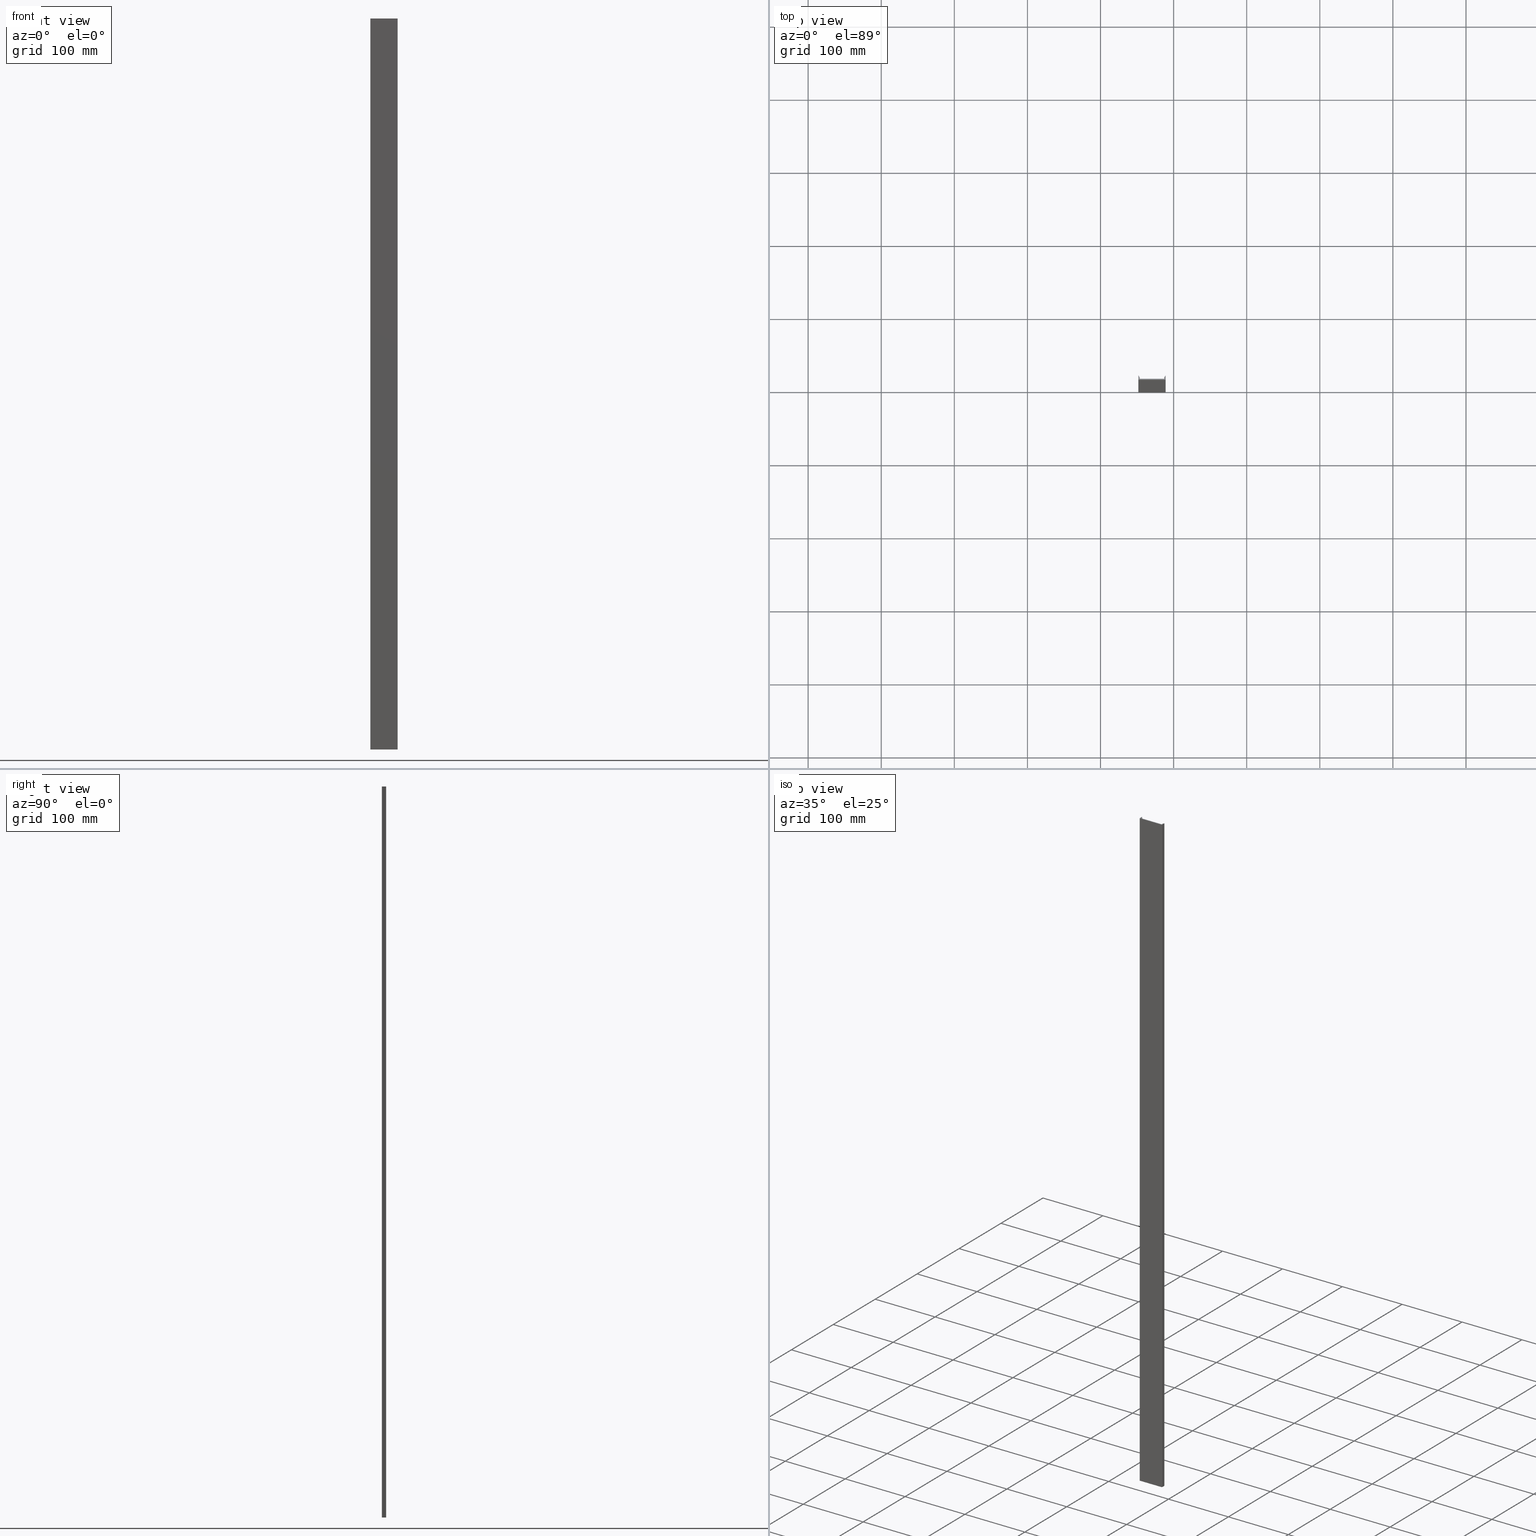
[diagram: canonical four-view strip — front | top / right | iso, engineering-drawing reading convention]
A machine part, canonical four-view strip (front | top / right | iso — engineering-drawing reading convention). The complete STEP part file that produces these views, byte-faithful:
ISO-10303-21;
HEADER;
FILE_DESCRIPTION (( 'STEP AP203' ),
    '1' );
FILE_NAME ('Da��t�c� �nite Alt �zolasyon Aparat� .STEP',
    '2018-12-19T11:37:42',
    ( '' ),
    ( '' ),
    'SwSTEP 2.0',
    'SolidWorks 2011',
    '' );
FILE_SCHEMA (( 'CONFIG_CONTROL_DESIGN' ));
ENDSEC;

DATA;
#1 = ORIENTED_EDGE ( 'NONE', *, *, #385, .T. ) ;
#2 = ORIENTED_EDGE ( 'NONE', *, *, #379, .T. ) ;
#3 = ORIENTED_EDGE ( 'NONE', *, *, #373, .F. ) ;
#4 = ORIENTED_EDGE ( 'NONE', *, *, #364, .F. ) ;
#5 = ORIENTED_EDGE ( 'NONE', *, *, #361, .F. ) ;
#6 = ORIENTED_EDGE ( 'NONE', *, *, #421, .T. ) ;
#7 = ORIENTED_EDGE ( 'NONE', *, *, #368, .F. ) ;
#8 = ORIENTED_EDGE ( 'NONE', *, *, #351, .T. ) ;
#9 = ORIENTED_EDGE ( 'NONE', *, *, #391, .T. ) ;
#10 = ORIENTED_EDGE ( 'NONE', *, *, #417, .T. ) ;
#11 = ORIENTED_EDGE ( 'NONE', *, *, #395, .T. ) ;
#12 = ORIENTED_EDGE ( 'NONE', *, *, #365, .T. ) ;
#13 = ORIENTED_EDGE ( 'NONE', *, *, #354, .F. ) ;
#14 = ORIENTED_EDGE ( 'NONE', *, *, #344, .F. ) ;
#15 = ORIENTED_EDGE ( 'NONE', *, *, #381, .F. ) ;
#16 = ORIENTED_EDGE ( 'NONE', *, *, #371, .F. ) ;
#17 = ORIENTED_EDGE ( 'NONE', *, *, #350, .F. ) ;
#18 = ORIENTED_EDGE ( 'NONE', *, *, #348, .F. ) ;
#19 = ORIENTED_EDGE ( 'NONE', *, *, #390, .T. ) ;
#20 = ORIENTED_EDGE ( 'NONE', *, *, #431, .T. ) ;
#21 = ORIENTED_EDGE ( 'NONE', *, *, #347, .F. ) ;
#22 = ORIENTED_EDGE ( 'NONE', *, *, #384, .F. ) ;
#23 = ORIENTED_EDGE ( 'NONE', *, *, #394, .T. ) ;
#24 = ORIENTED_EDGE ( 'NONE', *, *, #400, .F. ) ;
#25 = ORIENTED_EDGE ( 'NONE', *, *, #390, .F. ) ;
#26 = ORIENTED_EDGE ( 'NONE', *, *, #408, .F. ) ;
#27 = ORIENTED_EDGE ( 'NONE', *, *, #366, .F. ) ;
#28 = ORIENTED_EDGE ( 'NONE', *, *, #385, .F. ) ;
#29 = ORIENTED_EDGE ( 'NONE', *, *, #421, .F. ) ;
#30 = ORIENTED_EDGE ( 'NONE', *, *, #362, .F. ) ;
#31 = ORIENTED_EDGE ( 'NONE', *, *, #356, .F. ) ;
#32 = ORIENTED_EDGE ( 'NONE', *, *, #402, .F. ) ;
#33 = ORIENTED_EDGE ( 'NONE', *, *, #412, .F. ) ;
#34 = ORIENTED_EDGE ( 'NONE', *, *, #378, .F. ) ;
#35 = ORIENTED_EDGE ( 'NONE', *, *, #392, .F. ) ;
#36 = ORIENTED_EDGE ( 'NONE', *, *, #395, .F. ) ;
#37 = ORIENTED_EDGE ( 'NONE', *, *, #401, .T. ) ;
#38 = ORIENTED_EDGE ( 'NONE', *, *, #402, .T. ) ;
#39 = ORIENTED_EDGE ( 'NONE', *, *, #397, .F. ) ;
#40 = ORIENTED_EDGE ( 'NONE', *, *, #428, .F. ) ;
#41 = ORIENTED_EDGE ( 'NONE', *, *, #396, .T. ) ;
#42 = ORIENTED_EDGE ( 'NONE', *, *, #369, .T. ) ;
#43 = ORIENTED_EDGE ( 'NONE', *, *, #397, .T. ) ;
#44 = ORIENTED_EDGE ( 'NONE', *, *, #413, .F. ) ;
#45 = ORIENTED_EDGE ( 'NONE', *, *, #360, .T. ) ;
#46 = ORIENTED_EDGE ( 'NONE', *, *, #380, .F. ) ;
#47 = ORIENTED_EDGE ( 'NONE', *, *, #396, .F. ) ;
#48 = ORIENTED_EDGE ( 'NONE', *, *, #391, .F. ) ;
#49 = ORIENTED_EDGE ( 'NONE', *, *, #376, .F. ) ;
#50 = ORIENTED_EDGE ( 'NONE', *, *, #372, .F. ) ;
#51 = ORIENTED_EDGE ( 'NONE', *, *, #400, .T. ) ;
#52 = ORIENTED_EDGE ( 'NONE', *, *, #401, .F. ) ;
#53 = ORIENTED_EDGE ( 'NONE', *, *, #432, .F. ) ;
#54 = ORIENTED_EDGE ( 'NONE', *, *, #367, .F. ) ;
#55 = ORIENTED_EDGE ( 'NONE', *, *, #422, .T. ) ;
#56 = ORIENTED_EDGE ( 'NONE', *, *, #370, .F. ) ;
#57 = ORIENTED_EDGE ( 'NONE', *, *, #358, .F. ) ;
#58 = ORIENTED_EDGE ( 'NONE', *, *, #417, .F. ) ;
#59 = ORIENTED_EDGE ( 'NONE', *, *, #359, .T. ) ;
#60 = ORIENTED_EDGE ( 'NONE', *, *, #355, .T. ) ;
#61 = ORIENTED_EDGE ( 'NONE', *, *, #420, .F. ) ;
#62 = ORIENTED_EDGE ( 'NONE', *, *, #375, .T. ) ;
#63 = ORIENTED_EDGE ( 'NONE', *, *, #353, .F. ) ;
#64 = ORIENTED_EDGE ( 'NONE', *, *, #352, .T. ) ;
#65 = EDGE_LOOP ( 'NONE', ( #48, #30, #36, #261 ) ) ;
#66 = EDGE_LOOP ( 'NONE', ( #47, #56, #40, #57 ) ) ;
#67 = EDGE_LOOP ( 'NONE', ( #100, #19, #3, #121, #137, #43, #101, #1, #31, #11, #22, #122, #54, #134, #21, #59, #55, #7, #131, #50, #119 ) ) ;
#68 = EDGE_LOOP ( 'NONE', ( #14, #133, #18, #123 ) ) ;
#69 = EDGE_LOOP ( 'NONE', ( #79, #94, #110, #111 ) ) ;
#70 = EDGE_LOOP ( 'NONE', ( #26, #16, #44, #5 ) ) ;
#71 = EDGE_LOOP ( 'NONE', ( #52, #46, #39, #17 ) ) ;
#72 = EDGE_LOOP ( 'NONE', ( #8, #6, #64, #128, #2, #38, #45, #23, #12, #60, #51, #42, #41, #120, #9, #129, #20, #138, #37, #62, #10 ) ) ;
#73 = EDGE_LOOP ( 'NONE', ( #29, #13, #25, #35 ) ) ;
#74 = ORIENTED_EDGE ( 'NONE', *, *, #381, .T. ) ;
#75 = EDGE_LOOP ( 'NONE', ( #32, #27, #53, #34 ) ) ;
#76 = ORIENTED_EDGE ( 'NONE', *, *, #370, .T. ) ;
#77 = ORIENTED_EDGE ( 'NONE', *, *, #354, .T. ) ;
#78 = EDGE_LOOP ( 'NONE', ( #127, #76, #130, #98 ) ) ;
#79 = ORIENTED_EDGE ( 'NONE', *, *, #345, .F. ) ;
#80 = ORIENTED_EDGE ( 'NONE', *, *, #375, .F. ) ;
#81 = ORIENTED_EDGE ( 'NONE', *, *, #363, .T. ) ;
#82 = EDGE_LOOP ( 'NONE', ( #106, #114, #117, #108 ) ) ;
#83 = EDGE_LOOP ( 'NONE', ( #112, #113, #118, #104 ) ) ;
#84 = EDGE_LOOP ( 'NONE', ( #97, #102, #132, #99 ) ) ;
#85 = EDGE_LOOP ( 'NONE', ( #116, #4, #28, #15 ) ) ;
#86 = EDGE_LOOP ( 'NONE', ( #24, #49, #61, #63 ) ) ;
#87 = EDGE_LOOP ( 'NONE', ( #282, #254, #262, #277 ) ) ;
#88 = EDGE_LOOP ( 'NONE', ( #58, #124, #33, #115 ) ) ;
#89 = EDGE_LOOP ( 'NONE', ( #136, #81, #80, #103 ) ) ;
#90 = EDGE_LOOP ( 'NONE', ( #246, #292, #245, #273 ) ) ;
#91 = EDGE_LOOP ( 'NONE', ( #289, #259, #107, #105 ) ) ;
#92 = ORIENTED_EDGE ( 'NONE', *, *, #380, .T. ) ;
#93 = EDGE_LOOP ( 'NONE', ( #109, #77, #125, #126 ) ) ;
#94 = ORIENTED_EDGE ( 'NONE', *, *, #377, .T. ) ;
#95 = ORIENTED_EDGE ( 'NONE', *, *, #357, .T. ) ;
#96 = EDGE_LOOP ( 'NONE', ( #135, #74, #95, #92 ) ) ;
#97 = ORIENTED_EDGE ( 'NONE', *, *, #352, .F. ) ;
#98 = ORIENTED_EDGE ( 'NONE', *, *, #353, .T. ) ;
#99 = ORIENTED_EDGE ( 'NONE', *, *, #371, .T. ) ;
#100 = ORIENTED_EDGE ( 'NONE', *, *, #398, .F. ) ;
#101 = ORIENTED_EDGE ( 'NONE', *, *, #357, .F. ) ;
#102 = ORIENTED_EDGE ( 'NONE', *, *, #392, .T. ) ;
#103 = ORIENTED_EDGE ( 'NONE', *, *, #350, .T. ) ;
#104 = ORIENTED_EDGE ( 'NONE', *, *, #362, .T. ) ;
#105 = ORIENTED_EDGE ( 'NONE', *, *, #378, .T. ) ;
#106 = ORIENTED_EDGE ( 'NONE', *, *, #347, .T. ) ;
#107 = ORIENTED_EDGE ( 'NONE', *, *, #360, .F. ) ;
#108 = ORIENTED_EDGE ( 'NONE', *, *, #374, .T. ) ;
#109 = ORIENTED_EDGE ( 'NONE', *, *, #373, .T. ) ;
#110 = ORIENTED_EDGE ( 'NONE', *, *, #356, .T. ) ;
#111 = ORIENTED_EDGE ( 'NONE', *, *, #364, .T. ) ;
#112 = ORIENTED_EDGE ( 'NONE', *, *, #346, .F. ) ;
#113 = ORIENTED_EDGE ( 'NONE', *, *, #358, .T. ) ;
#114 = ORIENTED_EDGE ( 'NONE', *, *, #376, .T. ) ;
#115 = ORIENTED_EDGE ( 'NONE', *, *, #383, .F. ) ;
#116 = ORIENTED_EDGE ( 'NONE', *, *, #431, .F. ) ;
#117 = ORIENTED_EDGE ( 'NONE', *, *, #355, .F. ) ;
#118 = ORIENTED_EDGE ( 'NONE', *, *, #384, .T. ) ;
#119 = ORIENTED_EDGE ( 'NONE', *, *, #413, .T. ) ;
#120 = ORIENTED_EDGE ( 'NONE', *, *, #346, .T. ) ;
#121 = ORIENTED_EDGE ( 'NONE', *, *, #412, .T. ) ;
#122 = ORIENTED_EDGE ( 'NONE', *, *, #428, .T. ) ;
#123 = ORIENTED_EDGE ( 'NONE', *, *, #422, .F. ) ;
#124 = ORIENTED_EDGE ( 'NONE', *, *, #363, .F. ) ;
#125 = ORIENTED_EDGE ( 'NONE', *, *, #351, .F. ) ;
#126 = ORIENTED_EDGE ( 'NONE', *, *, #383, .T. ) ;
#127 = ORIENTED_EDGE ( 'NONE', *, *, #367, .T. ) ;
#128 = ORIENTED_EDGE ( 'NONE', *, *, #408, .T. ) ;
#129 = ORIENTED_EDGE ( 'NONE', *, *, #345, .T. ) ;
#130 = ORIENTED_EDGE ( 'NONE', *, *, #369, .F. ) ;
#131 = ORIENTED_EDGE ( 'NONE', *, *, #432, .T. ) ;
#132 = ORIENTED_EDGE ( 'NONE', *, *, #398, .T. ) ;
#133 = ORIENTED_EDGE ( 'NONE', *, *, #394, .F. ) ;
#134 = ORIENTED_EDGE ( 'NONE', *, *, #420, .T. ) ;
#135 = ORIENTED_EDGE ( 'NONE', *, *, #382, .F. ) ;
#136 = ORIENTED_EDGE ( 'NONE', *, *, #349, .T. ) ;
#137 = ORIENTED_EDGE ( 'NONE', *, *, #349, .F. ) ;
#138 = ORIENTED_EDGE ( 'NONE', *, *, #382, .T. ) ;
#139 = DIRECTION ( 'NONE',  ( 0.0000000000000000000, -0.0000000000000000000, 1.000000000000000000 ) ) ;
#140 = DIRECTION ( 'NONE',  ( 0.0000000000000000000, -0.0000000000000000000, 1.000000000000000000 ) ) ;
#141 = DIRECTION ( 'NONE',  ( 0.0000000000000000000, 0.0000000000000000000, 1.000000000000000000 ) ) ;
#142 = PLANE ( 'NONE',  #693 ) ;
#143 = CARTESIAN_POINT ( 'NONE',  ( 52.23745546312871800, 0.5000000000000000000, 1000.000000000000000 ) ) ;
#144 = FACE_OUTER_BOUND ( 'NONE', #69, .T. ) ;
#145 = DIRECTION ( 'NONE',  ( 0.0000000000000000000, -0.0000000000000000000, 1.000000000000000000 ) ) ;
#146 = CARTESIAN_POINT ( 'NONE',  ( 51.93745546312871400, 5.453748472184605200, 0.0000000000000000000 ) ) ;
#147 = DIRECTION ( 'NONE',  ( 1.000000000000000000, 0.0000000000000000000, 0.0000000000000000000 ) ) ;
#148 = DIRECTION ( 'NONE',  ( 0.0000000000000000000, 1.000000000000000000, 0.0000000000000000000 ) ) ;
#149 = DIRECTION ( 'NONE',  ( 1.000000000000000000, 0.0000000000000000000, 0.0000000000000000000 ) ) ;
#150 = DIRECTION ( 'NONE',  ( 1.239088197126290600E-016, -1.000000000000000000, 0.0000000000000000000 ) ) ;
#151 = CARTESIAN_POINT ( 'NONE',  ( 88.63745546312873100, 0.5000000000000000000, 0.0000000000000000000 ) ) ;
#152 = DIRECTION ( 'NONE',  ( -1.000000000000000000, 0.0000000000000000000, 0.0000000000000000000 ) ) ;
#153 = DIRECTION ( 'NONE',  ( 1.000000000000000000, 1.239088197126290600E-016, 0.0000000000000000000 ) ) ;
#154 = DIRECTION ( 'NONE',  ( -0.8448190755542287500, -0.5350520811843446600, 0.0000000000000000000 ) ) ;
#155 = CYLINDRICAL_SURFACE ( 'NONE', #697, 0.5000000000000004400 ) ;
#156 = DIRECTION ( 'NONE',  ( 0.0000000000000000000, 0.0000000000000000000, 1.000000000000000000 ) ) ;
#157 = DIRECTION ( 'NONE',  ( 1.000000000000000000, 0.0000000000000000000, 0.0000000000000000000 ) ) ;
#158 = FACE_OUTER_BOUND ( 'NONE', #65, .T. ) ;
#159 = CYLINDRICAL_SURFACE ( 'NONE', #711, 0.1999999999999987900 ) ;
#160 = CARTESIAN_POINT ( 'NONE',  ( 53.43745546312872800, 1.700000000000006400, 1000.000000000000000 ) ) ;
#161 = CARTESIAN_POINT ( 'NONE',  ( 53.13745546312872400, 2.589929587939146800, 1000.000000000000000 ) ) ;
#162 = DIRECTION ( 'NONE',  ( -0.0000000000000000000, 0.0000000000000000000, -1.000000000000000000 ) ) ;
#163 = DIRECTION ( 'NONE',  ( 1.000000000000000000, -8.673617379884087500E-015, 0.0000000000000000000 ) ) ;
#164 = DIRECTION ( 'NONE',  ( 1.000000000000000000, 0.0000000000000000000, 0.0000000000000000000 ) ) ;
#165 = FACE_OUTER_BOUND ( 'NONE', #83, .T. ) ;
#166 = FACE_OUTER_BOUND ( 'NONE', #93, .T. ) ;
#167 = DIRECTION ( 'NONE',  ( 0.5350520811843445500, -0.8448190755542286400, 0.0000000000000000000 ) ) ;
#168 = PLANE ( 'NONE',  #694 ) ;
#169 = CARTESIAN_POINT ( 'NONE',  ( 87.93745546312872800, 1.200000000000010800, 1000.000000000000000 ) ) ;
#170 = PLANE ( 'NONE',  #688 ) ;
#171 = DIRECTION ( 'NONE',  ( -0.0000000000000000000, 0.0000000000000000000, -1.000000000000000000 ) ) ;
#172 = PLANE ( 'NONE',  #701 ) ;
#173 = FACE_OUTER_BOUND ( 'NONE', #84, .T. ) ;
#174 = CARTESIAN_POINT ( 'NONE',  ( 87.73745546312872500, 2.589929587939151300, 0.0000000000000000000 ) ) ;
#175 = CARTESIAN_POINT ( 'NONE',  ( 52.93745546312872100, 2.700000000000010400, 1000.000000000000000 ) ) ;
#176 = CARTESIAN_POINT ( 'NONE',  ( 51.73745546312871800, 0.0000000000000000000, 1000.000000000000000 ) ) ;
#177 = DIRECTION ( 'NONE',  ( 1.000000000000000000, 0.0000000000000000000, 0.0000000000000000000 ) ) ;
#178 = DIRECTION ( 'NONE',  ( 0.0000000000000000000, 0.0000000000000000000, -1.000000000000000000 ) ) ;
#179 = CARTESIAN_POINT ( 'NONE',  ( 51.93745546312871400, 5.453748472184605200, 1000.000000000000000 ) ) ;
#180 = CARTESIAN_POINT ( 'NONE',  ( 51.73745546312871800, 0.0000000000000000000, 1000.000000000000000 ) ) ;
#181 = DIRECTION ( 'NONE',  ( 1.000000000000000000, 0.0000000000000000000, 0.0000000000000000000 ) ) ;
#182 = DIRECTION ( 'NONE',  ( 1.000000000000000000, 7.155734338404124800E-014, 0.0000000000000000000 ) ) ;
#183 = DIRECTION ( 'NONE',  ( -0.0000000000000000000, 0.0000000000000000000, -1.000000000000000000 ) ) ;
#184 = FACE_OUTER_BOUND ( 'NONE', #85, .T. ) ;
#185 = CARTESIAN_POINT ( 'NONE',  ( 88.93745546312872800, 5.453748472184594600, 1000.000000000000000 ) ) ;
#186 = DIRECTION ( 'NONE',  ( -1.000000000000000000, 0.0000000000000000000, 0.0000000000000000000 ) ) ;
#187 = CARTESIAN_POINT ( 'NONE',  ( 87.51342969447645700, 3.205286732207314900, 0.0000000000000000000 ) ) ;
#188 = CYLINDRICAL_SURFACE ( 'NONE', #707, 0.2000000000000057300 ) ;
#189 = FACE_OUTER_BOUND ( 'NONE', #75, .T. ) ;
#190 = DIRECTION ( 'NONE',  ( 0.0000000000000000000, 0.0000000000000000000, -1.000000000000000000 ) ) ;
#191 = DIRECTION ( 'NONE',  ( 0.0000000000000000000, -0.0000000000000000000, 1.000000000000000000 ) ) ;
#192 = DIRECTION ( 'NONE',  ( 0.0000000000000000000, 0.0000000000000000000, 1.000000000000000000 ) ) ;
#193 = DIRECTION ( 'NONE',  ( 1.000000000000000000, 0.0000000000000000000, 0.0000000000000000000 ) ) ;
#194 = CC_DESIGN_SECURITY_CLASSIFICATION ( #754, ( #755 ) ) ;
#195 = MANIFOLD_SOLID_BREP ( 'Radyus2', #644 ) ;
#196 = PRODUCT_DEFINITION_SHAPE ( 'NONE', 'NONE',  #425 ) ;
#197 = UNCERTAINTY_MEASURE_WITH_UNIT (LENGTH_MEASURE( 1.000000000000000100E-005 ), #607, 'distance_accuracy_value', 'NONE');
#198 = DESIGN_CONTEXT ( 'detailed design', #556, 'design' ) ;
#199 = LINE ( 'NONE', #237, #668 ) ;
#200 = DIRECTION ( 'NONE',  ( 0.0000000000000000000, 0.0000000000000000000, -1.000000000000000000 ) ) ;
#201 = CARTESIAN_POINT ( 'NONE',  ( 87.43745546312872800, 1.200000000000010800, 0.0000000000000000000 ) ) ;
#202 = LINE ( 'NONE', #218, #639 ) ;
#203 = DIRECTION ( 'NONE',  ( -0.0000000000000000000, -0.0000000000000000000, 1.000000000000000000 ) ) ;
#204 = LINE ( 'NONE', #205, #633 ) ;
#205 = CARTESIAN_POINT ( 'NONE',  ( 51.73745546312871800, 0.0000000000000000000, 1000.000000000000000 ) ) ;
#206 = LINE ( 'NONE', #221, #666 ) ;
#207 = LINE ( 'NONE', #216, #638 ) ;
#208 = LINE ( 'NONE', #241, #659 ) ;
#209 = DIRECTION ( 'NONE',  ( 0.8448190755542285300, 0.5350520811843447700, -0.0000000000000000000 ) ) ;
#210 = CARTESIAN_POINT ( 'NONE',  ( 51.73745546312871800, 0.5000000000000000000, 1000.000000000000000 ) ) ;
#211 = DIRECTION ( 'NONE',  ( 0.0000000000000000000, 0.0000000000000000000, -1.000000000000000000 ) ) ;
#212 = CARTESIAN_POINT ( 'NONE',  ( 52.93745546312872100, 2.700000000000010400, 0.0000000000000000000 ) ) ;
#213 = CARTESIAN_POINT ( 'NONE',  ( 87.51342969447645700, 3.205286732207314900, 0.0000000000000000000 ) ) ;
#214 = DIRECTION ( 'NONE',  ( -0.0000000000000000000, 0.0000000000000000000, -1.000000000000000000 ) ) ;
#215 = DIRECTION ( 'NONE',  ( 1.000000000000000000, 4.336808689941893900E-015, 0.0000000000000000000 ) ) ;
#216 = CARTESIAN_POINT ( 'NONE',  ( 51.73745546312871800, 6.143333333333338000, 0.0000000000000000000 ) ) ;
#217 = DIRECTION ( 'NONE',  ( -0.5350520811843445500, 0.8448190755542286400, -0.0000000000000000000 ) ) ;
#218 = CARTESIAN_POINT ( 'NONE',  ( 89.13745546312873100, 6.143333333333338000, 1000.000000000000000 ) ) ;
#219 = DIRECTION ( 'NONE',  ( -0.0000000000000000000, -0.0000000000000000000, 1.000000000000000000 ) ) ;
#220 = DIRECTION ( 'NONE',  ( -1.000000000000000000, -1.239088197126290600E-016, 0.0000000000000000000 ) ) ;
#221 = CARTESIAN_POINT ( 'NONE',  ( 87.23745546312874000, 3.143333333333339300, 1000.000000000000000 ) ) ;
#222 = LINE ( 'NONE', #212, #675 ) ;
#223 = LINE ( 'NONE', #239, #656 ) ;
#224 = LINE ( 'NONE', #235, #665 ) ;
#225 = CARTESIAN_POINT ( 'NONE',  ( 87.34446587936560000, 3.312297148444185400, 1000.000000000000000 ) ) ;
#226 = DIRECTION ( 'NONE',  ( 0.0000000000000000000, 0.0000000000000000000, -1.000000000000000000 ) ) ;
#227 = CARTESIAN_POINT ( 'NONE',  ( 87.93745546312872800, 2.589929587939151300, 0.0000000000000000000 ) ) ;
#228 = DIRECTION ( 'NONE',  ( -0.0000000000000000000, 1.000000000000000000, -0.0000000000000000000 ) ) ;
#229 = DIRECTION ( 'NONE',  ( 1.000000000000000000, 0.0000000000000000000, 0.0000000000000000000 ) ) ;
#230 = DIRECTION ( 'NONE',  ( -0.0000000000000000000, -1.000000000000000000, -0.0000000000000000000 ) ) ;
#231 = DIRECTION ( 'NONE',  ( -0.0000000000000000000, 1.000000000000000000, -0.0000000000000000000 ) ) ;
#232 = LINE ( 'NONE', #227, #681 ) ;
#233 = DIRECTION ( 'NONE',  ( 0.8448190755542285300, -0.5350520811843447700, 0.0000000000000000000 ) ) ;
#234 = DIRECTION ( 'NONE',  ( 0.8448190755542285300, -0.5350520811843447700, 0.0000000000000000000 ) ) ;
#235 = CARTESIAN_POINT ( 'NONE',  ( 87.23745546312874000, 3.143333333333339300, 0.0000000000000000000 ) ) ;
#236 = LINE ( 'NONE', #201, #648 ) ;
#237 = CARTESIAN_POINT ( 'NONE',  ( 51.73745546312871800, 0.0000000000000000000, 1000.000000000000000 ) ) ;
#238 = LINE ( 'NONE', #242, #662 ) ;
#239 = CARTESIAN_POINT ( 'NONE',  ( 52.93745546312872100, 2.700000000000010400, 1000.000000000000000 ) ) ;
#240 = LINE ( 'NONE', #210, #657 ) ;
#241 = CARTESIAN_POINT ( 'NONE',  ( 53.53044504689184900, 3.312297148444185400, 1000.000000000000000 ) ) ;
#242 = CARTESIAN_POINT ( 'NONE',  ( 53.63745546312871700, 3.143333333333339300, 0.0000000000000000000 ) ) ;
#243 = VERTEX_POINT ( 'NONE', #286 ) ;
#244 = VERTEX_POINT ( 'NONE', #285 ) ;
#245 = ORIENTED_EDGE ( 'NONE', *, *, #359, .F. ) ;
#246 = ORIENTED_EDGE ( 'NONE', *, *, #365, .F. ) ;
#247 = CARTESIAN_POINT ( 'NONE',  ( 89.13745546312873100, 0.5000000000000000000, 1000.000000000000000 ) ) ;
#248 = VERTEX_POINT ( 'NONE', #275 ) ;
#249 = VERTEX_POINT ( 'NONE', #287 ) ;
#250 = VERTEX_POINT ( 'NONE', #247 ) ;
#251 = VERTEX_POINT ( 'NONE', #296 ) ;
#252 = VERTEX_POINT ( 'NONE', #304 ) ;
#253 = VERTEX_POINT ( 'NONE', #295 ) ;
#254 = ORIENTED_EDGE ( 'NONE', *, *, #361, .T. ) ;
#255 = VERTEX_POINT ( 'NONE', #297 ) ;
#256 = VERTEX_POINT ( 'NONE', #306 ) ;
#257 = VERTEX_POINT ( 'NONE', #333 ) ;
#258 = VERTEX_POINT ( 'NONE', #310 ) ;
#259 = ORIENTED_EDGE ( 'NONE', *, *, #348, .T. ) ;
#260 = VERTEX_POINT ( 'NONE', #331 ) ;
#261 = ORIENTED_EDGE ( 'NONE', *, *, #377, .F. ) ;
#262 = ORIENTED_EDGE ( 'NONE', *, *, #372, .T. ) ;
#263 = VERTEX_POINT ( 'NONE', #305 ) ;
#264 = VERTEX_POINT ( 'NONE', #322 ) ;
#265 = VERTEX_POINT ( 'NONE', #318 ) ;
#266 = VERTEX_POINT ( 'NONE', #335 ) ;
#267 = VERTEX_POINT ( 'NONE', #337 ) ;
#268 = VERTEX_POINT ( 'NONE', #334 ) ;
#269 = VERTEX_POINT ( 'NONE', #325 ) ;
#270 = VERTEX_POINT ( 'NONE', #343 ) ;
#271 = VERTEX_POINT ( 'NONE', #307 ) ;
#272 = VERTEX_POINT ( 'NONE', #319 ) ;
#273 = ORIENTED_EDGE ( 'NONE', *, *, #374, .F. ) ;
#274 = VERTEX_POINT ( 'NONE', #312 ) ;
#275 = CARTESIAN_POINT ( 'NONE',  ( 52.23745546312871800, 0.0000000000000000000, 1000.000000000000000 ) ) ;
#276 = VERTEX_POINT ( 'NONE', #308 ) ;
#277 = ORIENTED_EDGE ( 'NONE', *, *, #366, .T. ) ;
#278 = VERTEX_POINT ( 'NONE', #309 ) ;
#279 = VERTEX_POINT ( 'NONE', #332 ) ;
#280 = VERTEX_POINT ( 'NONE', #311 ) ;
#281 = VERTEX_POINT ( 'NONE', #340 ) ;
#282 = ORIENTED_EDGE ( 'NONE', *, *, #379, .F. ) ;
#283 = VERTEX_POINT ( 'NONE', #320 ) ;
#284 = VERTEX_POINT ( 'NONE', #341 ) ;
#285 = CARTESIAN_POINT ( 'NONE',  ( 52.93745546312872100, 1.700000000000006400, 0.0000000000000000000 ) ) ;
#286 = CARTESIAN_POINT ( 'NONE',  ( 52.23745546312871800, 0.0000000000000000000, 0.0000000000000000000 ) ) ;
#287 = CARTESIAN_POINT ( 'NONE',  ( 51.73745546312871800, 0.5000000000000000000, 0.0000000000000000000 ) ) ;
#288 = VERTEX_POINT ( 'NONE', #313 ) ;
#289 = ORIENTED_EDGE ( 'NONE', *, *, #368, .T. ) ;
#290 = VERTEX_POINT ( 'NONE', #324 ) ;
#291 = VERTEX_POINT ( 'NONE', #326 ) ;
#292 = ORIENTED_EDGE ( 'NONE', *, *, #344, .T. ) ;
#293 = VERTEX_POINT ( 'NONE', #327 ) ;
#294 = VERTEX_POINT ( 'NONE', #329 ) ;
#295 = CARTESIAN_POINT ( 'NONE',  ( 52.93745546312872100, 2.589929587939146800, 0.0000000000000000000 ) ) ;
#296 = CARTESIAN_POINT ( 'NONE',  ( 53.46849164801786700, 3.036322917096468700, 0.0000000000000000000 ) ) ;
#297 = CARTESIAN_POINT ( 'NONE',  ( 88.76849164801788600, 5.560758888421465200, 1000.000000000000000 ) ) ;
#298 = VERTEX_POINT ( 'NONE', #342 ) ;
#299 = VERTEX_POINT ( 'NONE', #336 ) ;
#300 = VERTEX_POINT ( 'NONE', #315 ) ;
#301 = VERTEX_POINT ( 'NONE', #323 ) ;
#302 = VERTEX_POINT ( 'NONE', #328 ) ;
#303 = VERTEX_POINT ( 'NONE', #314 ) ;
#304 = CARTESIAN_POINT ( 'NONE',  ( 53.43745546312872800, 1.200000000000006400, 1000.000000000000000 ) ) ;
#305 = CARTESIAN_POINT ( 'NONE',  ( 89.13745546312873100, 5.453748472184594600, 1000.000000000000000 ) ) ;
#306 = CARTESIAN_POINT ( 'NONE',  ( 51.73745546312871800, 5.453748472184605200, 0.0000000000000000000 ) ) ;
#307 = CARTESIAN_POINT ( 'NONE',  ( 53.43745546312872800, 1.200000000000006400, 0.0000000000000000000 ) ) ;
#308 = CARTESIAN_POINT ( 'NONE',  ( 87.40641927823958200, 3.036322917096468700, 1000.000000000000000 ) ) ;
#309 = CARTESIAN_POINT ( 'NONE',  ( 51.73745546312871800, 0.5000000000000000000, 1000.000000000000000 ) ) ;
#310 = CARTESIAN_POINT ( 'NONE',  ( 89.13745546312873100, 5.453748472184594600, 0.0000000000000000000 ) ) ;
#311 = CARTESIAN_POINT ( 'NONE',  ( 87.31342969447644000, 3.205286732207314900, 1000.000000000000000 ) ) ;
#312 = CARTESIAN_POINT ( 'NONE',  ( 52.10641927823956400, 5.560758888421474900, 0.0000000000000000000 ) ) ;
#313 = CARTESIAN_POINT ( 'NONE',  ( 89.13745546312873100, 0.5000000000000000000, 0.0000000000000000000 ) ) ;
#314 = CARTESIAN_POINT ( 'NONE',  ( 88.76849164801788600, 5.560758888421465200, 0.0000000000000000000 ) ) ;
#315 = CARTESIAN_POINT ( 'NONE',  ( 87.43745546312872800, 1.200000000000010800, 1000.000000000000000 ) ) ;
#316 = LINE ( 'NONE', #225, #678 ) ;
#317 = CARTESIAN_POINT ( 'NONE',  ( 87.93745546312872800, 1.200000000000010800, 1000.000000000000000 ) ) ;
#318 = CARTESIAN_POINT ( 'NONE',  ( 87.84446587936558600, 2.758893403049997000, 0.0000000000000000000 ) ) ;
#319 = CARTESIAN_POINT ( 'NONE',  ( 52.93745546312872100, 2.589929587939146800, 1000.000000000000000 ) ) ;
#320 = CARTESIAN_POINT ( 'NONE',  ( 87.34446587936560000, 3.312297148444186300, 0.0000000000000000000 ) ) ;
#321 = LINE ( 'NONE', #330, #637 ) ;
#322 = CARTESIAN_POINT ( 'NONE',  ( 87.40641927823958200, 3.036322917096468700, 0.0000000000000000000 ) ) ;
#323 = CARTESIAN_POINT ( 'NONE',  ( 87.93745546312872800, 1.700000000000010800, 1000.000000000000000 ) ) ;
#324 = CARTESIAN_POINT ( 'NONE',  ( 87.84446587936558600, 2.758893403049997000, 1000.000000000000000 ) ) ;
#325 = CARTESIAN_POINT ( 'NONE',  ( 53.03044504689185600, 2.758893403049993000, 1000.000000000000000 ) ) ;
#326 = CARTESIAN_POINT ( 'NONE',  ( 88.63745546312873100, 0.0000000000000000000, 1000.000000000000000 ) ) ;
#327 = CARTESIAN_POINT ( 'NONE',  ( 53.53044504689184900, 3.312297148444186300, 0.0000000000000000000 ) ) ;
#328 = CARTESIAN_POINT ( 'NONE',  ( 87.34446587936560000, 3.312297148444186300, 1000.000000000000000 ) ) ;
#329 = CARTESIAN_POINT ( 'NONE',  ( 53.46849164801786700, 3.036322917096468700, 1000.000000000000000 ) ) ;
#330 = CARTESIAN_POINT ( 'NONE',  ( 87.31342969447644000, 3.205286732207314900, 1000.000000000000000 ) ) ;
#331 = CARTESIAN_POINT ( 'NONE',  ( 87.31342969447644000, 3.205286732207314900, 0.0000000000000000000 ) ) ;
#332 = CARTESIAN_POINT ( 'NONE',  ( 52.10641927823956400, 5.560758888421474900, 1000.000000000000000 ) ) ;
#333 = CARTESIAN_POINT ( 'NONE',  ( 88.63745546312873100, 0.0000000000000000000, 0.0000000000000000000 ) ) ;
#334 = CARTESIAN_POINT ( 'NONE',  ( 53.03044504689185600, 2.758893403049993000, 0.0000000000000000000 ) ) ;
#335 = CARTESIAN_POINT ( 'NONE',  ( 51.73745546312871800, 5.453748472184605200, 1000.000000000000000 ) ) ;
#336 = CARTESIAN_POINT ( 'NONE',  ( 87.93745546312872800, 2.589929587939151300, 0.0000000000000000000 ) ) ;
#337 = CARTESIAN_POINT ( 'NONE',  ( 87.93745546312872800, 1.700000000000010800, 0.0000000000000000000 ) ) ;
#338 = DIRECTION ( 'NONE',  ( 0.0000000000000000000, 0.0000000000000000000, -1.000000000000000000 ) ) ;
#339 = LINE ( 'NONE', #317, #660 ) ;
#340 = CARTESIAN_POINT ( 'NONE',  ( 87.43745546312872800, 1.200000000000010800, 0.0000000000000000000 ) ) ;
#341 = CARTESIAN_POINT ( 'NONE',  ( 52.93745546312872100, 1.700000000000006400, 1000.000000000000000 ) ) ;
#342 = CARTESIAN_POINT ( 'NONE',  ( 87.93745546312872800, 2.589929587939151300, 1000.000000000000000 ) ) ;
#343 = CARTESIAN_POINT ( 'NONE',  ( 53.53044504689184900, 3.312297148444186300, 1000.000000000000000 ) ) ;
#344 = EDGE_CURVE ( 'NONE', #280, #260, #321, .T. ) ;
#345 = EDGE_CURVE ( 'NONE', #284, #272, #223, .T. ) ;
#346 = EDGE_CURVE ( 'NONE', #300, #252, #339, .T. ) ;
#347 = EDGE_CURVE ( 'NONE', #264, #265, #224, .T. ) ;
#348 = EDGE_CURVE ( 'NONE', #283, #302, #316, .T. ) ;
#349 = EDGE_CURVE ( 'NONE', #293, #274, #207, .T. ) ;
#350 = EDGE_CURVE ( 'NONE', #270, #293, #208, .T. ) ;
#351 = EDGE_CURVE ( 'NONE', #266, #278, #204, .T. ) ;
#352 = EDGE_CURVE ( 'NONE', #248, #291, #199, .T. ) ;
#353 = EDGE_CURVE ( 'NONE', #298, #299, #232, .T. ) ;
#354 = EDGE_CURVE ( 'NONE', #249, #278, #240, .T. ) ;
#355 = EDGE_CURVE ( 'NONE', #276, #290, #206, .T. ) ;
#356 = EDGE_CURVE ( 'NONE', #244, #253, #222, .T. ) ;
#357 = EDGE_CURVE ( 'NONE', #268, #251, #238, .T. ) ;
#358 = EDGE_CURVE ( 'NONE', #300, #281, #236, .T. ) ;
#359 = EDGE_CURVE ( 'NONE', #264, #260, #650, .T. ) ;
#360 = EDGE_CURVE ( 'NONE', #255, #302, #202, .T. ) ;
#361 = EDGE_CURVE ( 'NONE', #250, #288, #540, .T. ) ;
#362 = EDGE_CURVE ( 'NONE', #271, #252, #537, .T. ) ;
#363 = EDGE_CURVE ( 'NONE', #274, #279, #548, .T. ) ;
#364 = EDGE_CURVE ( 'NONE', #253, #272, #536, .T. ) ;
#365 = EDGE_CURVE ( 'NONE', #280, #276, #661, .T. ) ;
#366 = EDGE_CURVE ( 'NONE', #258, #263, #553, .T. ) ;
#367 = EDGE_CURVE ( 'NONE', #299, #267, #538, .T. ) ;
#368 = EDGE_CURVE ( 'NONE', #303, #283, #551, .T. ) ;
#369 = EDGE_CURVE ( 'NONE', #298, #301, #459, .T. ) ;
#370 = EDGE_CURVE ( 'NONE', #267, #301, #458, .T. ) ;
#371 = EDGE_CURVE ( 'NONE', #257, #291, #444, .T. ) ;
#372 = EDGE_CURVE ( 'NONE', #288, #258, #534, .T. ) ;
#373 = EDGE_CURVE ( 'NONE', #256, #249, #472, .T. ) ;
#374 = EDGE_CURVE ( 'NONE', #276, #264, #479, .T. ) ;
#375 = EDGE_CURVE ( 'NONE', #270, #279, #453, .T. ) ;
#376 = EDGE_CURVE ( 'NONE', #265, #290, #483, .T. ) ;
#377 = EDGE_CURVE ( 'NONE', #284, #244, #455, .T. ) ;
#378 = EDGE_CURVE ( 'NONE', #255, #303, #462, .T. ) ;
#379 = EDGE_CURVE ( 'NONE', #250, #263, #476, .T. ) ;
#380 = EDGE_CURVE ( 'NONE', #251, #294, #473, .T. ) ;
#381 = EDGE_CURVE ( 'NONE', #269, #268, #446, .T. ) ;
#382 = EDGE_CURVE ( 'NONE', #269, #294, #443, .T. ) ;
#383 = EDGE_CURVE ( 'NONE', #266, #256, #445, .T. ) ;
#384 = EDGE_CURVE ( 'NONE', #281, #271, #478, .T. ) ;
#385 = EDGE_CURVE ( 'NONE', #268, #253, #664, .T. ) ;
#386 = ADVANCED_FACE ( 'NONE', ( #527 ), #523, .F. ) ;
#387 = ADVANCED_FACE ( 'NONE', ( #529 ), #498, .F. ) ;
#388 = APPROVAL ( #584, 'BEL�RT�LMEM��' ) ;
#389 = ADVANCED_FACE ( 'NONE', ( #515 ), #524, .F. ) ;
#390 = EDGE_CURVE ( 'NONE', #243, #249, #680, .T. ) ;
#391 = EDGE_CURVE ( 'NONE', #252, #284, #737, .T. ) ;
#392 = EDGE_CURVE ( 'NONE', #248, #243, #501, .T. ) ;
#393 = ADVANCED_FACE ( 'NONE', ( #490 ), #502, .F. ) ;
#394 = EDGE_CURVE ( 'NONE', #302, #280, #695, .T. ) ;
#395 = EDGE_CURVE ( 'NONE', #244, #271, #691, .T. ) ;
#396 = EDGE_CURVE ( 'NONE', #301, #300, #731, .T. ) ;
#397 = EDGE_CURVE ( 'NONE', #293, #251, #742, .T. ) ;
#398 = EDGE_CURVE ( 'NONE', #243, #257, #776, .T. ) ;
#399 = ADVANCED_FACE ( 'NONE', ( #773 ), #777, .T. ) ;
#400 = EDGE_CURVE ( 'NONE', #290, #298, #685, .T. ) ;
#401 = EDGE_CURVE ( 'NONE', #294, #270, #738, .T. ) ;
#402 = EDGE_CURVE ( 'NONE', #263, #255, #724, .T. ) ;
#403 = ADVANCED_FACE ( 'NONE', ( #761 ), #804, .T. ) ;
#404 = ADVANCED_FACE ( 'NONE', ( #791 ), #758, .F. ) ;
#405 = ADVANCED_FACE ( 'NONE', ( #771 ), #774, .F. ) ;
#406 = ADVANCED_FACE ( 'NONE', ( #781 ), #790, .T. ) ;
#407 = ADVANCED_FACE ( 'NONE', ( #763 ), #800, .F. ) ;
#408 = EDGE_CURVE ( 'NONE', #291, #250, #692, .T. ) ;
#409 = ADVANCED_FACE ( 'NONE', ( #814 ), #789, .T. ) ;
#410 = ADVANCED_FACE ( 'NONE', ( #809 ), #810, .F. ) ;
#411 = ADVANCED_FACE ( 'NONE', ( #818 ), #816, .F. ) ;
#412 = EDGE_CURVE ( 'NONE', #256, #274, #732, .T. ) ;
#413 = EDGE_CURVE ( 'NONE', #288, #257, #736, .T. ) ;
#414 = ADVANCED_FACE ( 'NONE', ( #165 ), #172, .F. ) ;
#415 = ADVANCED_FACE ( 'NONE', ( #173 ), #170, .F. ) ;
#416 = ADVANCED_FACE ( 'NONE', ( #144 ), #168, .F. ) ;
#417 = EDGE_CURVE ( 'NONE', #279, #266, #689, .T. ) ;
#418 = ADVANCED_FACE ( 'NONE', ( #166 ), #142, .F. ) ;
#419 = ADVANCED_FACE ( 'NONE', ( #158 ), #155, .F. ) ;
#420 = EDGE_CURVE ( 'NONE', #299, #265, #687, .T. ) ;
#421 = EDGE_CURVE ( 'NONE', #278, #248, #704, .T. ) ;
#422 = EDGE_CURVE ( 'NONE', #260, #283, #706, .T. ) ;
#423 = ADVANCED_FACE ( 'NONE', ( #184 ), #159, .F. ) ;
#424 = CC_DESIGN_PERSON_AND_ORGANIZATION_ASSIGNMENT ( #583, #566, ( #632 ) ) ;
#425 = PRODUCT_DEFINITION ( 'Bilinmeyen', '', #755, #198 ) ;
#426 = ADVANCED_FACE ( 'NONE', ( #189 ), #188, .T. ) ;
#427 = CC_DESIGN_PERSON_AND_ORGANIZATION_ASSIGNMENT ( #565, #589, ( #425 ) ) ;
#428 = EDGE_CURVE ( 'NONE', #281, #267, #712, .T. ) ;
#429 = CC_DESIGN_DATE_AND_TIME_ASSIGNMENT ( #588, #558, ( #425 ) ) ;
#430 = APPROVAL ( #571, 'BEL�RT�LMEM��' ) ;
#431 = EDGE_CURVE ( 'NONE', #272, #269, #729, .T. ) ;
#432 = EDGE_CURVE ( 'NONE', #303, #258, #698, .T. ) ;
#433 = ADVANCED_FACE ( 'NONE', ( #598 ), #599, .T. ) ;
#434 = ADVANCED_FACE ( 'NONE', ( #608 ), #606, .T. ) ;
#435 = ADVANCED_FACE ( 'NONE', ( #602 ), #590, .T. ) ;
#436 = CC_DESIGN_PERSON_AND_ORGANIZATION_ASSIGNMENT ( #563, #574, ( #755 ) ) ;
#437 = CC_DESIGN_DATE_AND_TIME_ASSIGNMENT ( #621, #625, ( #754 ) ) ;
#438 = APPROVAL ( #624, 'BEL�RT�LMEM��' ) ;
#439 = CC_DESIGN_PERSON_AND_ORGANIZATION_ASSIGNMENT ( #629, #617, ( #754 ) ) ;
#440 = PRODUCT_RELATED_PRODUCT_CATEGORY ( 'detail', '', ( #632 ) ) ;
#441 = CC_DESIGN_PERSON_AND_ORGANIZATION_ASSIGNMENT ( #627, #620, ( #755 ) ) ;
#442 = CARTESIAN_POINT ( 'NONE',  ( 88.63745546312873100, 0.0000000000000000000, 1000.000000000000000 ) ) ;
#443 = LINE ( 'NONE', #466, #634 ) ;
#444 = LINE ( 'NONE', #442, #682 ) ;
#445 = LINE ( 'NONE', #467, #635 ) ;
#446 = LINE ( 'NONE', #464, #654 ) ;
#447 = CARTESIAN_POINT ( 'NONE',  ( 87.84446587936558600, 2.758893403049997000, 1000.000000000000000 ) ) ;
#448 = DIRECTION ( 'NONE',  ( 0.0000000000000000000, 0.0000000000000000000, -1.000000000000000000 ) ) ;
#449 = CARTESIAN_POINT ( 'NONE',  ( 51.73745546312871800, 0.0000000000000000000, 0.0000000000000000000 ) ) ;
#450 = DIRECTION ( 'NONE',  ( 0.0000000000000000000, 0.0000000000000000000, -1.000000000000000000 ) ) ;
#451 = CARTESIAN_POINT ( 'NONE',  ( 52.93745546312872100, 1.700000000000006400, 0.0000000000000000000 ) ) ;
#452 = CARTESIAN_POINT ( 'NONE',  ( 88.76849164801788600, 5.560758888421465200, 1000.000000000000000 ) ) ;
#453 = LINE ( 'NONE', #468, #670 ) ;
#454 = DIRECTION ( 'NONE',  ( -0.0000000000000000000, -0.0000000000000000000, 1.000000000000000000 ) ) ;
#455 = LINE ( 'NONE', #451, #643 ) ;
#456 = CARTESIAN_POINT ( 'NONE',  ( 89.13745546312873100, 0.0000000000000000000, 1000.000000000000000 ) ) ;
#457 = CARTESIAN_POINT ( 'NONE',  ( 87.93745546312872800, 1.700000000000010800, 1000.000000000000000 ) ) ;
#458 = LINE ( 'NONE', #457, #649 ) ;
#459 = LINE ( 'NONE', #465, #684 ) ;
#460 = DIRECTION ( 'NONE',  ( -0.0000000000000000000, -1.000000000000000000, -0.0000000000000000000 ) ) ;
#461 = DIRECTION ( 'NONE',  ( -0.5350520811843445500, 0.8448190755542286400, -0.0000000000000000000 ) ) ;
#462 = LINE ( 'NONE', #452, #669 ) ;
#463 = DIRECTION ( 'NONE',  ( 0.0000000000000000000, 1.000000000000000000, 0.0000000000000000000 ) ) ;
#464 = CARTESIAN_POINT ( 'NONE',  ( 53.03044504689185600, 2.758893403049993000, 0.0000000000000000000 ) ) ;
#465 = CARTESIAN_POINT ( 'NONE',  ( 87.93745546312872800, 2.700000000000010400, 1000.000000000000000 ) ) ;
#466 = CARTESIAN_POINT ( 'NONE',  ( 53.63745546312871700, 3.143333333333339300, 1000.000000000000000 ) ) ;
#467 = CARTESIAN_POINT ( 'NONE',  ( 51.73745546312871800, 5.453748472184605200, 1000.000000000000000 ) ) ;
#468 = CARTESIAN_POINT ( 'NONE',  ( 51.73745546312871800, 6.143333333333338000, 1000.000000000000000 ) ) ;
#469 = CARTESIAN_POINT ( 'NONE',  ( 89.13745546312873100, 0.0000000000000000000, 0.0000000000000000000 ) ) ;
#470 = DIRECTION ( 'NONE',  ( 0.0000000000000000000, -1.000000000000000000, 0.0000000000000000000 ) ) ;
#471 = DIRECTION ( 'NONE',  ( -0.0000000000000000000, -0.0000000000000000000, 1.000000000000000000 ) ) ;
#472 = LINE ( 'NONE', #449, #683 ) ;
#473 = LINE ( 'NONE', #474, #676 ) ;
#474 = CARTESIAN_POINT ( 'NONE',  ( 53.46849164801786700, 3.036322917096468700, 1000.000000000000000 ) ) ;
#475 = DIRECTION ( 'NONE',  ( 0.0000000000000000000, 0.0000000000000000000, -1.000000000000000000 ) ) ;
#476 = LINE ( 'NONE', #456, #663 ) ;
#477 = DIRECTION ( 'NONE',  ( 0.0000000000000000000, 0.0000000000000000000, -1.000000000000000000 ) ) ;
#478 = LINE ( 'NONE', #521, #653 ) ;
#479 = LINE ( 'NONE', #484, #651 ) ;
#480 = DIRECTION ( 'NONE',  ( 0.0000000000000000000, 1.000000000000000000, 0.0000000000000000000 ) ) ;
#481 = DIRECTION ( 'NONE',  ( 0.0000000000000000000, 0.0000000000000000000, -1.000000000000000000 ) ) ;
#482 = DIRECTION ( 'NONE',  ( -0.0000000000000000000, -0.0000000000000000000, 1.000000000000000000 ) ) ;
#483 = LINE ( 'NONE', #447, #667 ) ;
#484 = CARTESIAN_POINT ( 'NONE',  ( 87.40641927823958200, 3.036322917096468700, 1000.000000000000000 ) ) ;
#485 = CARTESIAN_POINT ( 'NONE',  ( 89.13745546312873100, 6.143333333333338000, 0.0000000000000000000 ) ) ;
#486 = DIRECTION ( 'NONE',  ( 0.8448190755542285300, 0.5350520811843447700, -0.0000000000000000000 ) ) ;
#487 = DIRECTION ( 'NONE',  ( -0.5350520811843445500, -0.8448190755542286400, 0.0000000000000000000 ) ) ;
#488 = DIRECTION ( 'NONE',  ( -0.0000000000000000000, -0.0000000000000000000, 1.000000000000000000 ) ) ;
#489 = CARTESIAN_POINT ( 'NONE',  ( 53.43745546312872800, 1.700000000000006400, 1000.000000000000000 ) ) ;
#490 = FACE_OUTER_BOUND ( 'NONE', #67, .T. ) ;
#491 = CARTESIAN_POINT ( 'NONE',  ( 87.43745546312872800, 1.700000000000010800, 1000.000000000000000 ) ) ;
#492 = DIRECTION ( 'NONE',  ( -0.0000000000000000000, 0.0000000000000000000, -1.000000000000000000 ) ) ;
#493 = CARTESIAN_POINT ( 'NONE',  ( 89.13745546312873100, 1.200000000000011100, 0.0000000000000000000 ) ) ;
#494 = DIRECTION ( 'NONE',  ( -0.8448190755542285300, -0.5350520811843447700, 0.0000000000000000000 ) ) ;
#495 = DIRECTION ( 'NONE',  ( 1.000000000000000000, 0.0000000000000000000, 0.0000000000000000000 ) ) ;
#496 = DIRECTION ( 'NONE',  ( 1.000000000000000000, 0.0000000000000000000, 0.0000000000000000000 ) ) ;
#497 = DIRECTION ( 'NONE',  ( 0.0000000000000000000, -0.0000000000000000000, 1.000000000000000000 ) ) ;
#498 = PLANE ( 'NONE',  #636 ) ;
#499 = DIRECTION ( 'NONE',  ( 0.0000000000000000000, 0.0000000000000000000, -1.000000000000000000 ) ) ;
#500 = DIRECTION ( 'NONE',  ( 1.000000000000000000, 0.0000000000000000000, -0.0000000000000000000 ) ) ;
#501 = LINE ( 'NONE', #511, #710 ) ;
#502 = PLANE ( 'NONE',  #703 ) ;
#503 = CARTESIAN_POINT ( 'NONE',  ( 89.13745546312873100, 0.0000000000000000000, 1000.000000000000000 ) ) ;
#504 = DIRECTION ( 'NONE',  ( 1.000000000000000000, 0.0000000000000000000, -0.0000000000000000000 ) ) ;
#505 = DIRECTION ( 'NONE',  ( 1.000000000000000000, 0.0000000000000000000, 0.0000000000000000000 ) ) ;
#506 = DIRECTION ( 'NONE',  ( 1.000000000000000000, 0.0000000000000000000, 0.0000000000000000000 ) ) ;
#507 = CARTESIAN_POINT ( 'NONE',  ( 87.51342969447645700, 3.205286732207314900, 1000.000000000000000 ) ) ;
#508 = DIRECTION ( 'NONE',  ( 1.000000000000000000, 0.0000000000000000000, 0.0000000000000000000 ) ) ;
#509 = DIRECTION ( 'NONE',  ( -0.0000000000000000000, 0.0000000000000000000, -1.000000000000000000 ) ) ;
#510 = DIRECTION ( 'NONE',  ( 1.000000000000000000, 0.0000000000000000000, 0.0000000000000000000 ) ) ;
#511 = CARTESIAN_POINT ( 'NONE',  ( 52.23745546312871800, 0.0000000000000000000, 1000.000000000000000 ) ) ;
#512 = DIRECTION ( 'NONE',  ( -0.0000000000000000000, 0.0000000000000000000, -1.000000000000000000 ) ) ;
#513 = DIRECTION ( 'NONE',  ( -1.000000000000000000, -1.239088197126290600E-016, 0.0000000000000000000 ) ) ;
#514 = CARTESIAN_POINT ( 'NONE',  ( 53.13745546312872400, 2.589929587939146800, 0.0000000000000000000 ) ) ;
#515 = FACE_OUTER_BOUND ( 'NONE', #96, .T. ) ;
#516 = DIRECTION ( 'NONE',  ( -0.5350520811843447700, 0.8448190755542285300, 0.0000000000000000000 ) ) ;
#517 = DIRECTION ( 'NONE',  ( 0.0000000000000000000, -0.0000000000000000000, 1.000000000000000000 ) ) ;
#518 = CARTESIAN_POINT ( 'NONE',  ( 52.23745546312871800, 0.5000000000000000000, 0.0000000000000000000 ) ) ;
#519 = CARTESIAN_POINT ( 'NONE',  ( 53.43745546312872800, 1.700000000000006400, 0.0000000000000000000 ) ) ;
#520 = DIRECTION ( 'NONE',  ( 0.0000000000000000000, -0.0000000000000000000, 1.000000000000000000 ) ) ;
#521 = CARTESIAN_POINT ( 'NONE',  ( 87.93745546312872800, 1.200000000000010800, 0.0000000000000000000 ) ) ;
#522 = CARTESIAN_POINT ( 'NONE',  ( 53.63745546312871700, 3.143333333333339300, 1000.000000000000000 ) ) ;
#523 = PLANE ( 'NONE',  #655 ) ;
#524 = PLANE ( 'NONE',  #716 ) ;
#525 = CARTESIAN_POINT ( 'NONE',  ( 87.93745546312872800, 2.700000000000010400, 1000.000000000000000 ) ) ;
#526 = DIRECTION ( 'NONE',  ( 0.0000000000000000000, 0.0000000000000000000, 1.000000000000000000 ) ) ;
#527 = FACE_OUTER_BOUND ( 'NONE', #87, .T. ) ;
#528 = DIRECTION ( 'NONE',  ( -1.000000000000000000, 0.0000000000000000000, 0.0000000000000000000 ) ) ;
#529 = FACE_OUTER_BOUND ( 'NONE', #78, .T. ) ;
#530 = DIRECTION ( 'NONE',  ( 0.0000000000000000000, -0.0000000000000000000, 1.000000000000000000 ) ) ;
#531 = DIRECTION ( 'NONE',  ( -0.0000000000000000000, 0.0000000000000000000, -1.000000000000000000 ) ) ;
#532 = CARTESIAN_POINT ( 'NONE',  ( 89.13745546312873100, 5.453748472184594600, 1000.000000000000000 ) ) ;
#533 = DIRECTION ( 'NONE',  ( -0.0000000000000000000, -0.0000000000000000000, 1.000000000000000000 ) ) ;
#534 = LINE ( 'NONE', #469, #652 ) ;
#535 = CARTESIAN_POINT ( 'NONE',  ( 52.10641927823956400, 5.560758888421474900, 1000.000000000000000 ) ) ;
#536 = LINE ( 'NONE', #550, #640 ) ;
#537 = LINE ( 'NONE', #546, #658 ) ;
#538 = LINE ( 'NONE', #543, #642 ) ;
#539 = DIRECTION ( 'NONE',  ( -0.5350520811843445500, -0.8448190755542286400, 0.0000000000000000000 ) ) ;
#540 = LINE ( 'NONE', #554, #641 ) ;
#541 = CARTESIAN_POINT ( 'NONE',  ( 87.51342969447645700, 3.205286732207314900, 1000.000000000000000 ) ) ;
#542 = DIRECTION ( 'NONE',  ( 0.0000000000000000000, -0.0000000000000000000, 1.000000000000000000 ) ) ;
#543 = CARTESIAN_POINT ( 'NONE',  ( 87.93745546312872800, 2.700000000000010400, 0.0000000000000000000 ) ) ;
#544 = DIRECTION ( 'NONE',  ( 1.000000000000000000, 0.0000000000000000000, 0.0000000000000000000 ) ) ;
#545 = DIRECTION ( 'NONE',  ( 0.0000000000000000000, -1.000000000000000000, 0.0000000000000000000 ) ) ;
#546 = CARTESIAN_POINT ( 'NONE',  ( 53.43745546312872800, 1.200000000000006400, 1000.000000000000000 ) ) ;
#547 = DIRECTION ( 'NONE',  ( -0.0000000000000000000, -0.0000000000000000000, 1.000000000000000000 ) ) ;
#548 = LINE ( 'NONE', #535, #673 ) ;
#549 = DIRECTION ( 'NONE',  ( -0.0000000000000000000, -0.0000000000000000000, 1.000000000000000000 ) ) ;
#550 = CARTESIAN_POINT ( 'NONE',  ( 52.93745546312872100, 2.589929587939146800, 1000.000000000000000 ) ) ;
#551 = LINE ( 'NONE', #485, #647 ) ;
#552 = DIRECTION ( 'NONE',  ( -0.0000000000000000000, -0.0000000000000000000, 1.000000000000000000 ) ) ;
#553 = LINE ( 'NONE', #532, #645 ) ;
#554 = CARTESIAN_POINT ( 'NONE',  ( 89.13745546312873100, 0.5000000000000000000, 1000.000000000000000 ) ) ;
#555 = DIRECTION ( 'NONE',  ( 0.0000000000000000000, 0.0000000000000000000, -1.000000000000000000 ) ) ;
#556 = APPLICATION_CONTEXT ( 'configuration controlled 3d designs of mechanical parts and assemblies' ) ;
#557 = APPLICATION_CONTEXT ( 'configuration controlled 3d designs of mechanical parts and assemblies' ) ;
#558 = DATE_TIME_ROLE ( 'creation_date' ) ;
#559 = PERSON_AND_ORGANIZATION ( #819, #744 ) ;
#560 = COORDINATED_UNIVERSAL_TIME_OFFSET ( 3, 0, .AHEAD. ) ;
#561 = COORDINATED_UNIVERSAL_TIME_OFFSET ( 3, 0, .AHEAD. ) ;
#562 = DATE_AND_TIME ( #573, #746 ) ;
#563 = PERSON_AND_ORGANIZATION ( #819, #744 ) ;
#564 = COORDINATED_UNIVERSAL_TIME_OFFSET ( 3, 0, .AHEAD. ) ;
#565 = PERSON_AND_ORGANIZATION ( #819, #744 ) ;
#566 = PERSON_AND_ORGANIZATION_ROLE ( 'design_owner' ) ;
#567 = APPROVAL_DATE_TIME ( #586, #388 ) ;
#568 =( NAMED_UNIT ( * ) PLANE_ANGLE_UNIT ( ) SI_UNIT ( $, .RADIAN. ) );
#569 = DIRECTION ( 'NONE',  ( 1.000000000000000000, 0.0000000000000000000, 0.0000000000000000000 ) ) ;
#570 = APPROVAL_ROLE ( '' ) ;
#571 = APPROVAL_STATUS ( 'not_yet_approved' ) ;
#572 = APPROVAL_ROLE ( '' ) ;
#573 = CALENDAR_DATE ( 2018, 19, 12 ) ;
#574 = PERSON_AND_ORGANIZATION_ROLE ( 'creator' ) ;
#575 = APPLICATION_PROTOCOL_DEFINITION ( 'international standard', 'config_control_design', 1994, #556 ) ;
#576 = MECHANICAL_CONTEXT ( 'NONE', #557, 'mechanical' ) ;
#577 = PERSON_AND_ORGANIZATION ( #819, #744 ) ;
#578 = CALENDAR_DATE ( 2018, 19, 12 ) ;
#579 = CARTESIAN_POINT ( 'NONE',  ( 0.0000000000000000000, 0.0000000000000000000, 0.0000000000000000000 ) ) ;
#580 = DIRECTION ( 'NONE',  ( 0.0000000000000000000, 0.0000000000000000000, 1.000000000000000000 ) ) ;
#581 = CALENDAR_DATE ( 2018, 19, 12 ) ;
#582 = APPROVAL_DATE_TIME ( #562, #430 ) ;
#583 = PERSON_AND_ORGANIZATION ( #819, #744 ) ;
#584 = APPROVAL_STATUS ( 'not_yet_approved' ) ;
#585 =( NAMED_UNIT ( * ) SI_UNIT ( $, .STERADIAN. ) SOLID_ANGLE_UNIT ( ) );
#586 = DATE_AND_TIME ( #581, #748 ) ;
#587 = APPLICATION_PROTOCOL_DEFINITION ( 'international standard', 'config_control_design', 1994, #557 ) ;
#588 = DATE_AND_TIME ( #578, #750 ) ;
#589 = PERSON_AND_ORGANIZATION_ROLE ( 'creator' ) ;
#590 = PLANE ( 'NONE',  #721 ) ;
#591 = DIRECTION ( 'NONE',  ( 1.000000000000000000, 0.0000000000000000000, -0.0000000000000000000 ) ) ;
#592 = DIRECTION ( 'NONE',  ( 1.000000000000000000, -1.734723475976757600E-014, 0.0000000000000000000 ) ) ;
#593 = DIRECTION ( 'NONE',  ( 0.0000000000000000000, -0.0000000000000000000, 1.000000000000000000 ) ) ;
#594 = DIRECTION ( 'NONE',  ( -0.0000000000000000000, 0.0000000000000000000, -1.000000000000000000 ) ) ;
#595 = DIRECTION ( 'NONE',  ( 1.000000000000000000, -2.168404344971021900E-015, 0.0000000000000000000 ) ) ;
#596 = DIRECTION ( 'NONE',  ( -0.0000000000000000000, 0.0000000000000000000, -1.000000000000000000 ) ) ;
#597 = DIRECTION ( 'NONE',  ( -1.000000000000000000, 0.0000000000000000000, 0.0000000000000000000 ) ) ;
#598 = FACE_OUTER_BOUND ( 'NONE', #88, .T. ) ;
#599 = CYLINDRICAL_SURFACE ( 'NONE', #719, 0.1999999999999987900 ) ;
#600 = CARTESIAN_POINT ( 'NONE',  ( 87.51342969447645700, 3.205286732207314900, 1000.000000000000000 ) ) ;
#601 = CARTESIAN_POINT ( 'NONE',  ( 88.93745546312872800, 5.453748472184594600, 0.0000000000000000000 ) ) ;
#602 = FACE_OUTER_BOUND ( 'NONE', #72, .T. ) ;
#603 = CARTESIAN_POINT ( 'NONE',  ( 89.13745546312873100, 1.200000000000011100, 1000.000000000000000 ) ) ;
#604 = DIRECTION ( 'NONE',  ( 0.0000000000000000000, 0.0000000000000000000, -1.000000000000000000 ) ) ;
#605 = DIRECTION ( 'NONE',  ( 0.0000000000000000000, -0.0000000000000000000, 1.000000000000000000 ) ) ;
#606 = CYLINDRICAL_SURFACE ( 'NONE', #727, 0.2000000000000057300 ) ;
#607 =( LENGTH_UNIT ( ) NAMED_UNIT ( * ) SI_UNIT ( .MILLI., .METRE. ) );
#608 = FACE_OUTER_BOUND ( 'NONE', #90, .T. ) ;
#609 = DIRECTION ( 'NONE',  ( 0.0000000000000000000, 0.0000000000000000000, -1.000000000000000000 ) ) ;
#610 = DIRECTION ( 'NONE',  ( -1.000000000000000000, 0.0000000000000000000, 0.0000000000000000000 ) ) ;
#611 = DIRECTION ( 'NONE',  ( 1.000000000000000000, 0.0000000000000000000, 0.0000000000000000000 ) ) ;
#612 = CARTESIAN_POINT ( 'NONE',  ( 53.13745546312872400, 2.589929587939146800, 1000.000000000000000 ) ) ;
#613 = CARTESIAN_POINT ( 'NONE',  ( 87.43745546312872800, 1.700000000000010800, 0.0000000000000000000 ) ) ;
#614 = CARTESIAN_POINT ( 'NONE',  ( 51.93745546312871400, 5.453748472184605200, 1000.000000000000000 ) ) ;
#615 = DATE_AND_TIME ( #622, #672 ) ;
#616 = COORDINATED_UNIVERSAL_TIME_OFFSET ( 3, 0, .AHEAD. ) ;
#617 = PERSON_AND_ORGANIZATION_ROLE ( 'classification_officer' ) ;
#618 = COORDINATED_UNIVERSAL_TIME_OFFSET ( 3, 0, .AHEAD. ) ;
#619 = CALENDAR_DATE ( 2018, 19, 12 ) ;
#620 = PERSON_AND_ORGANIZATION_ROLE ( 'design_supplier' ) ;
#621 = DATE_AND_TIME ( #619, #747 ) ;
#622 = CALENDAR_DATE ( 2018, 19, 12 ) ;
#623 = SHAPE_DEFINITION_REPRESENTATION ( #196, #820 ) ;
#624 = APPROVAL_STATUS ( 'not_yet_approved' ) ;
#625 = DATE_TIME_ROLE ( 'classification_date' ) ;
#626 = PERSON_AND_ORGANIZATION ( #819, #744 ) ;
#627 = PERSON_AND_ORGANIZATION ( #819, #744 ) ;
#628 = APPROVAL_ROLE ( '' ) ;
#629 = PERSON_AND_ORGANIZATION ( #819, #744 ) ;
#630 = SECURITY_CLASSIFICATION_LEVEL ( 'unclassified' ) ;
#631 = APPROVAL_DATE_TIME ( #615, #438 ) ;
#632 = PRODUCT ( 'Da��t�c� �nite Alt �zolasyon Aparat� ', 'Da��t�c� �nite Alt �zolasyon Aparat� ', '', ( #576 ) ) ;
#633 = VECTOR ( 'NONE', #230, 1000.000000000000000 ) ;
#634 = VECTOR ( 'NONE', #486, 1000.000000000000200 ) ;
#635 = VECTOR ( 'NONE', #475, 1000.000000000000000 ) ;
#636 = AXIS2_PLACEMENT_3D ( 'NONE', #525, #504, #512 ) ;
#637 = VECTOR ( 'NONE', #338, 1000.000000000000000 ) ;
#638 = VECTOR ( 'NONE', #217, 1000.000000000000100 ) ;
#639 = VECTOR ( 'NONE', #539, 1000.000000000000100 ) ;
#640 = VECTOR ( 'NONE', #552, 1000.000000000000000 ) ;
#641 = VECTOR ( 'NONE', #555, 1000.000000000000000 ) ;
#642 = VECTOR ( 'NONE', #545, 1000.000000000000000 ) ;
#643 = VECTOR ( 'NONE', #448, 1000.000000000000000 ) ;
#644 = CLOSED_SHELL ( 'NONE', ( #434, #386, #410, #405, #387, #414, #416, #389, #411, #418, #415, #435, #393, #404, #403, #426, #433, #423, #399, #406, #409, #407, #419 ) ) ;
#645 = VECTOR ( 'NONE', #533, 1000.000000000000000 ) ;
#646 = AXIS2_PLACEMENT_3D ( 'NONE', #213, #214, #215 ) ;
#647 = VECTOR ( 'NONE', #487, 1000.000000000000100 ) ;
#648 = VECTOR ( 'NONE', #211, 1000.000000000000000 ) ;
#649 = VECTOR ( 'NONE', #488, 1000.000000000000000 ) ;
#650 = CIRCLE ( 'NONE', #646, 0.2000000000000057300 ) ;
#651 = VECTOR ( 'NONE', #450, 1000.000000000000000 ) ;
#652 = VECTOR ( 'NONE', #480, 1000.000000000000000 ) ;
#653 = VECTOR ( 'NONE', #513, 1000.000000000000000 ) ;
#654 = VECTOR ( 'NONE', #477, 1000.000000000000000 ) ;
#655 = AXIS2_PLACEMENT_3D ( 'NONE', #503, #528, #526 ) ;
#656 = VECTOR ( 'NONE', #231, 1000.000000000000000 ) ;
#657 = VECTOR ( 'NONE', #219, 1000.000000000000000 ) ;
#658 = VECTOR ( 'NONE', #547, 1000.000000000000000 ) ;
#659 = VECTOR ( 'NONE', #226, 1000.000000000000000 ) ;
#660 = VECTOR ( 'NONE', #220, 1000.000000000000000 ) ;
#661 = CIRCLE ( 'NONE', #679, 0.2000000000000057300 ) ;
#662 = VECTOR ( 'NONE', #209, 1000.000000000000200 ) ;
#663 = VECTOR ( 'NONE', #463, 1000.000000000000000 ) ;
#664 = CIRCLE ( 'NONE', #671, 0.1999999999999987900 ) ;
#665 = VECTOR ( 'NONE', #234, 1000.000000000000200 ) ;
#666 = VECTOR ( 'NONE', #233, 1000.000000000000200 ) ;
#667 = VECTOR ( 'NONE', #471, 1000.000000000000000 ) ;
#668 = VECTOR ( 'NONE', #229, 1000.000000000000000 ) ;
#669 = VECTOR ( 'NONE', #481, 1000.000000000000000 ) ;
#670 = VECTOR ( 'NONE', #461, 1000.000000000000100 ) ;
#671 = AXIS2_PLACEMENT_3D ( 'NONE', #514, #497, #510 ) ;
#672 = LOCAL_TIME ( 14, 37, 42.00000000000000000, #616 ) ;
#673 = VECTOR ( 'NONE', #549, 1000.000000000000000 ) ;
#674 = CC_DESIGN_APPROVAL ( #438, ( #754 ) ) ;
#675 = VECTOR ( 'NONE', #228, 1000.000000000000000 ) ;
#676 = VECTOR ( 'NONE', #482, 1000.000000000000000 ) ;
#677 = AXIS2_PLACEMENT_3D ( 'NONE', #518, #531, #495 ) ;
#678 = VECTOR ( 'NONE', #203, 1000.000000000000000 ) ;
#679 = AXIS2_PLACEMENT_3D ( 'NONE', #541, #542, #544 ) ;
#680 = CIRCLE ( 'NONE', #677, 0.5000000000000004400 ) ;
#681 = VECTOR ( 'NONE', #200, 1000.000000000000000 ) ;
#682 = VECTOR ( 'NONE', #454, 1000.000000000000000 ) ;
#683 = VECTOR ( 'NONE', #460, 1000.000000000000000 ) ;
#684 = VECTOR ( 'NONE', #470, 1000.000000000000000 ) ;
#685 = CIRCLE ( 'NONE', #741, 0.2000000000000057300 ) ;
#686 = AXIS2_PLACEMENT_3D ( 'NONE', #760, #759, #778 ) ;
#687 = CIRCLE ( 'NONE', #717, 0.2000000000000057300 ) ;
#688 = AXIS2_PLACEMENT_3D ( 'NONE', #176, #148, #140 ) ;
#689 = CIRCLE ( 'NONE', #690, 0.1999999999999987900 ) ;
#690 = AXIS2_PLACEMENT_3D ( 'NONE', #179, #145, #147 ) ;
#691 = CIRCLE ( 'NONE', #705, 0.5000000000000004400 ) ;
#692 = CIRCLE ( 'NONE', #720, 0.5000000000000004400 ) ;
#693 = AXIS2_PLACEMENT_3D ( 'NONE', #180, #149, #178 ) ;
#694 = AXIS2_PLACEMENT_3D ( 'NONE', #175, #152, #141 ) ;
#695 = CIRCLE ( 'NONE', #702, 0.2000000000000057300 ) ;
#696 = AXIS2_PLACEMENT_3D ( 'NONE', #143, #191, #181 ) ;
#697 = AXIS2_PLACEMENT_3D ( 'NONE', #160, #156, #157 ) ;
#698 = CIRCLE ( 'NONE', #699, 0.2000000000000057300 ) ;
#699 = AXIS2_PLACEMENT_3D ( 'NONE', #601, #596, #592 ) ;
#700 = AXIS2_PLACEMENT_3D ( 'NONE', #767, #787, #788 ) ;
#701 = AXIS2_PLACEMENT_3D ( 'NONE', #169, #150, #153 ) ;
#702 = AXIS2_PLACEMENT_3D ( 'NONE', #507, #530, #508 ) ;
#703 = AXIS2_PLACEMENT_3D ( 'NONE', #493, #517, #500 ) ;
#704 = CIRCLE ( 'NONE', #696, 0.5000000000000004400 ) ;
#705 = AXIS2_PLACEMENT_3D ( 'NONE', #519, #520, #506 ) ;
#706 = CIRCLE ( 'NONE', #715, 0.2000000000000057300 ) ;
#707 = AXIS2_PLACEMENT_3D ( 'NONE', #185, #190, #186 ) ;
#708 = AXIS2_PLACEMENT_3D ( 'NONE', #612, #594, #595 ) ;
#709 = AXIS2_PLACEMENT_3D ( 'NONE', #798, #780, #775 ) ;
#710 = VECTOR ( 'NONE', #499, 1000.000000000000000 ) ;
#711 = AXIS2_PLACEMENT_3D ( 'NONE', #161, #192, #193 ) ;
#712 = CIRCLE ( 'NONE', #726, 0.5000000000000004400 ) ;
#713 = AXIS2_PLACEMENT_3D ( 'NONE', #783, #795, #799 ) ;
#714 = AXIS2_PLACEMENT_3D ( 'NONE', #805, #154, #167 ) ;
#715 = AXIS2_PLACEMENT_3D ( 'NONE', #187, #183, #182 ) ;
#716 = AXIS2_PLACEMENT_3D ( 'NONE', #522, #516, #494 ) ;
#717 = AXIS2_PLACEMENT_3D ( 'NONE', #174, #139, #177 ) ;
#718 = AXIS2_PLACEMENT_3D ( 'NONE', #812, #813, #815 ) ;
#719 = AXIS2_PLACEMENT_3D ( 'NONE', #614, #604, #597 ) ;
#720 = AXIS2_PLACEMENT_3D ( 'NONE', #817, #806, #807 ) ;
#721 = AXIS2_PLACEMENT_3D ( 'NONE', #603, #605, #591 ) ;
#722 = VECTOR ( 'NONE', #792, 1000.000000000000000 ) ;
#723 = AXIS2_PLACEMENT_3D ( 'NONE', #491, #492, #505 ) ;
#724 = CIRCLE ( 'NONE', #700, 0.2000000000000057300 ) ;
#725 = AXIS2_PLACEMENT_3D ( 'NONE', #802, #808, #811 ) ;
#726 = AXIS2_PLACEMENT_3D ( 'NONE', #613, #593, #611 ) ;
#727 = AXIS2_PLACEMENT_3D ( 'NONE', #600, #609, #610 ) ;
#728 = AXIS2_PLACEMENT_3D ( 'NONE', #797, #762, #785 ) ;
#729 = CIRCLE ( 'NONE', #708, 0.1999999999999987900 ) ;
#730 = AXIS2_PLACEMENT_3D ( 'NONE', #766, #801, #782 ) ;
#731 = CIRCLE ( 'NONE', #723, 0.5000000000000004400 ) ;
#732 = CIRCLE ( 'NONE', #735, 0.1999999999999987900 ) ;
#733 = AXIS2_PLACEMENT_3D ( 'NONE', #793, #794, #796 ) ;
#734 = AXIS2_PLACEMENT_3D ( 'NONE', #489, #509, #496 ) ;
#735 = AXIS2_PLACEMENT_3D ( 'NONE', #146, #171, #163 ) ;
#736 = CIRCLE ( 'NONE', #743, 0.5000000000000004400 ) ;
#737 = CIRCLE ( 'NONE', #734, 0.5000000000000004400 ) ;
#738 = CIRCLE ( 'NONE', #709, 0.1999999999999987900 ) ;
#739 = AXIS2_PLACEMENT_3D ( 'NONE', #768, #770, #786 ) ;
#740 = AXIS2_PLACEMENT_3D ( 'NONE', #784, #769, #779 ) ;
#741 = AXIS2_PLACEMENT_3D ( 'NONE', #803, #764, #765 ) ;
#742 = CIRCLE ( 'NONE', #740, 0.1999999999999987900 ) ;
#743 = AXIS2_PLACEMENT_3D ( 'NONE', #151, #162, #164 ) ;
#744 = ORGANIZATION ( 'BEL�RT�LMEM��', 'BEL�RT�LMEM��', '' ) ;
#745 = CC_DESIGN_APPROVAL ( #388, ( #425 ) ) ;
#746 = LOCAL_TIME ( 14, 37, 42.00000000000000000, #561 ) ;
#747 = LOCAL_TIME ( 14, 37, 42.00000000000000000, #618 ) ;
#748 = LOCAL_TIME ( 14, 37, 42.00000000000000000, #564 ) ;
#749 = APPROVAL_PERSON_ORGANIZATION ( #577, #388, #570 ) ;
#750 = LOCAL_TIME ( 14, 37, 42.00000000000000000, #560 ) ;
#751 = CC_DESIGN_APPROVAL ( #430, ( #755 ) ) ;
#752 = APPROVAL_PERSON_ORGANIZATION ( #626, #438, #628 ) ;
#753 = APPROVAL_PERSON_ORGANIZATION ( #559, #430, #572 ) ;
#754 = SECURITY_CLASSIFICATION ( '', '', #630 ) ;
#755 = PRODUCT_DEFINITION_FORMATION_WITH_SPECIFIED_SOURCE ( '     Herhangi', '', #632, .NOT_KNOWN. ) ;
#756 = AXIS2_PLACEMENT_3D ( 'NONE', #579, #580, #569 ) ;
#757 =( GEOMETRIC_REPRESENTATION_CONTEXT ( 3 ) GLOBAL_UNCERTAINTY_ASSIGNED_CONTEXT ( ( #197 ) ) GLOBAL_UNIT_ASSIGNED_CONTEXT ( ( #607, #568, #585 ) ) REPRESENTATION_CONTEXT ( 'NONE', 'WORKASPACE' ) );
#758 = CYLINDRICAL_SURFACE ( 'NONE', #739, 0.2000000000000057300 ) ;
#759 = DIRECTION ( 'NONE',  ( 0.5350520811843447700, 0.8448190755542285300, -0.0000000000000000000 ) ) ;
#760 = CARTESIAN_POINT ( 'NONE',  ( 87.23745546312874000, 3.143333333333339300, 1000.000000000000000 ) ) ;
#761 = FACE_OUTER_BOUND ( 'NONE', #68, .T. ) ;
#762 = DIRECTION ( 'NONE',  ( 0.0000000000000000000, 0.0000000000000000000, -1.000000000000000000 ) ) ;
#763 = FACE_OUTER_BOUND ( 'NONE', #66, .T. ) ;
#764 = DIRECTION ( 'NONE',  ( -0.0000000000000000000, 0.0000000000000000000, -1.000000000000000000 ) ) ;
#765 = DIRECTION ( 'NONE',  ( 1.000000000000000000, -2.168404344970946900E-015, 0.0000000000000000000 ) ) ;
#766 = CARTESIAN_POINT ( 'NONE',  ( 87.51342969447645700, 3.205286732207314900, 1000.000000000000000 ) ) ;
#767 = CARTESIAN_POINT ( 'NONE',  ( 88.93745546312872800, 5.453748472184594600, 1000.000000000000000 ) ) ;
#768 = CARTESIAN_POINT ( 'NONE',  ( 87.73745546312872500, 2.589929587939151300, 1000.000000000000000 ) ) ;
#769 = DIRECTION ( 'NONE',  ( -0.0000000000000000000, 0.0000000000000000000, -1.000000000000000000 ) ) ;
#770 = DIRECTION ( 'NONE',  ( 0.0000000000000000000, 0.0000000000000000000, 1.000000000000000000 ) ) ;
#771 = FACE_OUTER_BOUND ( 'NONE', #82, .T. ) ;
#772 = CARTESIAN_POINT ( 'NONE',  ( 51.73745546312871800, 0.0000000000000000000, 0.0000000000000000000 ) ) ;
#773 = FACE_OUTER_BOUND ( 'NONE', #71, .T. ) ;
#774 = PLANE ( 'NONE',  #686 ) ;
#775 = DIRECTION ( 'NONE',  ( 1.000000000000000000, 0.0000000000000000000, 0.0000000000000000000 ) ) ;
#776 = LINE ( 'NONE', #772, #722 ) ;
#777 = CYLINDRICAL_SURFACE ( 'NONE', #728, 0.1999999999999987900 ) ;
#778 = DIRECTION ( 'NONE',  ( -0.8448190755542285300, 0.5350520811843447700, 0.0000000000000000000 ) ) ;
#779 = DIRECTION ( 'NONE',  ( 1.000000000000000000, 6.071532165918861400E-014, 0.0000000000000000000 ) ) ;
#780 = DIRECTION ( 'NONE',  ( 0.0000000000000000000, -0.0000000000000000000, 1.000000000000000000 ) ) ;
#781 = FACE_OUTER_BOUND ( 'NONE', #73, .T. ) ;
#782 = DIRECTION ( 'NONE',  ( -1.000000000000000000, 0.0000000000000000000, 0.0000000000000000000 ) ) ;
#783 = CARTESIAN_POINT ( 'NONE',  ( 52.23745546312871800, 0.5000000000000000000, 1000.000000000000000 ) ) ;
#784 = CARTESIAN_POINT ( 'NONE',  ( 53.36148123178099900, 3.205286732207314900, 0.0000000000000000000 ) ) ;
#785 = DIRECTION ( 'NONE',  ( -1.000000000000000000, 0.0000000000000000000, 0.0000000000000000000 ) ) ;
#786 = DIRECTION ( 'NONE',  ( 1.000000000000000000, 0.0000000000000000000, 0.0000000000000000000 ) ) ;
#787 = DIRECTION ( 'NONE',  ( 0.0000000000000000000, -0.0000000000000000000, 1.000000000000000000 ) ) ;
#788 = DIRECTION ( 'NONE',  ( 1.000000000000000000, 0.0000000000000000000, 0.0000000000000000000 ) ) ;
#789 = CYLINDRICAL_SURFACE ( 'NONE', #725, 0.5000000000000004400 ) ;
#790 = CYLINDRICAL_SURFACE ( 'NONE', #713, 0.5000000000000004400 ) ;
#791 = FACE_OUTER_BOUND ( 'NONE', #86, .T. ) ;
#792 = DIRECTION ( 'NONE',  ( 1.000000000000000000, 0.0000000000000000000, 0.0000000000000000000 ) ) ;
#793 = CARTESIAN_POINT ( 'NONE',  ( 87.43745546312872800, 1.700000000000010800, 1000.000000000000000 ) ) ;
#794 = DIRECTION ( 'NONE',  ( 0.0000000000000000000, 0.0000000000000000000, 1.000000000000000000 ) ) ;
#795 = DIRECTION ( 'NONE',  ( 0.0000000000000000000, 0.0000000000000000000, -1.000000000000000000 ) ) ;
#796 = DIRECTION ( 'NONE',  ( 1.000000000000000000, 0.0000000000000000000, 0.0000000000000000000 ) ) ;
#797 = CARTESIAN_POINT ( 'NONE',  ( 53.36148123178099900, 3.205286732207314900, 1000.000000000000000 ) ) ;
#798 = CARTESIAN_POINT ( 'NONE',  ( 53.36148123178099900, 3.205286732207314900, 1000.000000000000000 ) ) ;
#799 = DIRECTION ( 'NONE',  ( -1.000000000000000000, 0.0000000000000000000, 0.0000000000000000000 ) ) ;
#800 = CYLINDRICAL_SURFACE ( 'NONE', #733, 0.5000000000000004400 ) ;
#801 = DIRECTION ( 'NONE',  ( 0.0000000000000000000, 0.0000000000000000000, -1.000000000000000000 ) ) ;
#802 = CARTESIAN_POINT ( 'NONE',  ( 88.63745546312873100, 0.5000000000000000000, 1000.000000000000000 ) ) ;
#803 = CARTESIAN_POINT ( 'NONE',  ( 87.73745546312872500, 2.589929587939151300, 1000.000000000000000 ) ) ;
#804 = CYLINDRICAL_SURFACE ( 'NONE', #730, 0.2000000000000057300 ) ;
#805 = CARTESIAN_POINT ( 'NONE',  ( 51.73745546312871800, 6.143333333333338000, 1000.000000000000000 ) ) ;
#806 = DIRECTION ( 'NONE',  ( 0.0000000000000000000, -0.0000000000000000000, 1.000000000000000000 ) ) ;
#807 = DIRECTION ( 'NONE',  ( 1.000000000000000000, 0.0000000000000000000, 0.0000000000000000000 ) ) ;
#808 = DIRECTION ( 'NONE',  ( 0.0000000000000000000, 0.0000000000000000000, -1.000000000000000000 ) ) ;
#809 = FACE_OUTER_BOUND ( 'NONE', #91, .T. ) ;
#810 = PLANE ( 'NONE',  #718 ) ;
#811 = DIRECTION ( 'NONE',  ( -1.000000000000000000, 0.0000000000000000000, 0.0000000000000000000 ) ) ;
#812 = CARTESIAN_POINT ( 'NONE',  ( 89.13745546312873100, 6.143333333333338000, 1000.000000000000000 ) ) ;
#813 = DIRECTION ( 'NONE',  ( 0.8448190755542287500, -0.5350520811843446600, 0.0000000000000000000 ) ) ;
#814 = FACE_OUTER_BOUND ( 'NONE', #70, .T. ) ;
#815 = DIRECTION ( 'NONE',  ( 0.5350520811843445500, 0.8448190755542286400, 0.0000000000000000000 ) ) ;
#816 = PLANE ( 'NONE',  #714 ) ;
#817 = CARTESIAN_POINT ( 'NONE',  ( 88.63745546312873100, 0.5000000000000000000, 1000.000000000000000 ) ) ;
#818 = FACE_OUTER_BOUND ( 'NONE', #89, .T. ) ;
#819 = PERSON ( 'BEL�RT�LMEM��', 'BEL�RT�LMEM��', 'BEL�RT�LMEM��', ('BEL�RT�LMEM��'), ('BEL�RT�LMEM��'), ('BEL�RT�LMEM��') ) ;
#820 = ADVANCED_BREP_SHAPE_REPRESENTATION ( 'Da��t�c� �nite Alt �zolasyon Aparat� ', ( #195, #756 ), #757 ) ;
ENDSEC;
END-ISO-10303-21;
